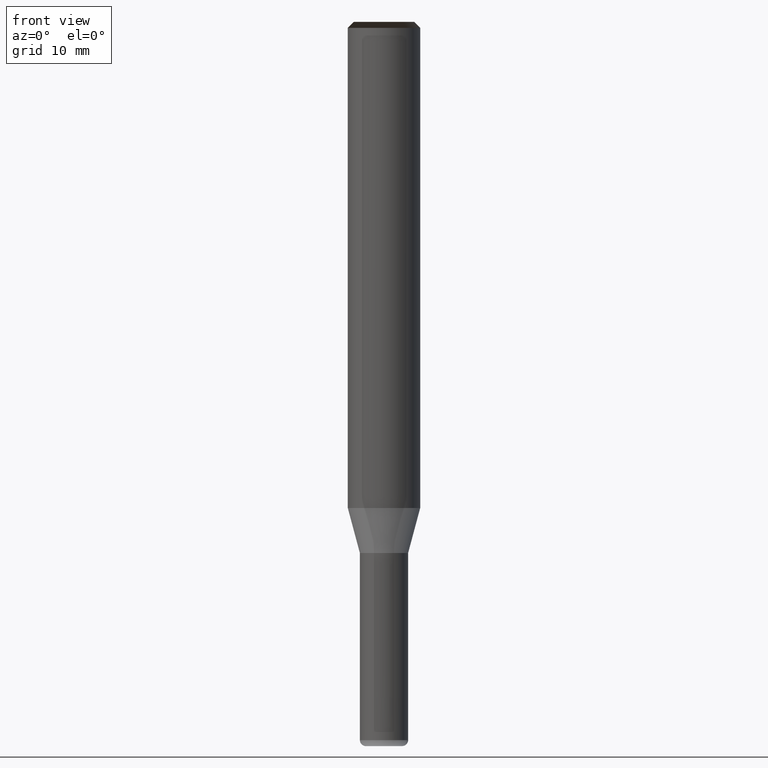
[diagram: clean part render]
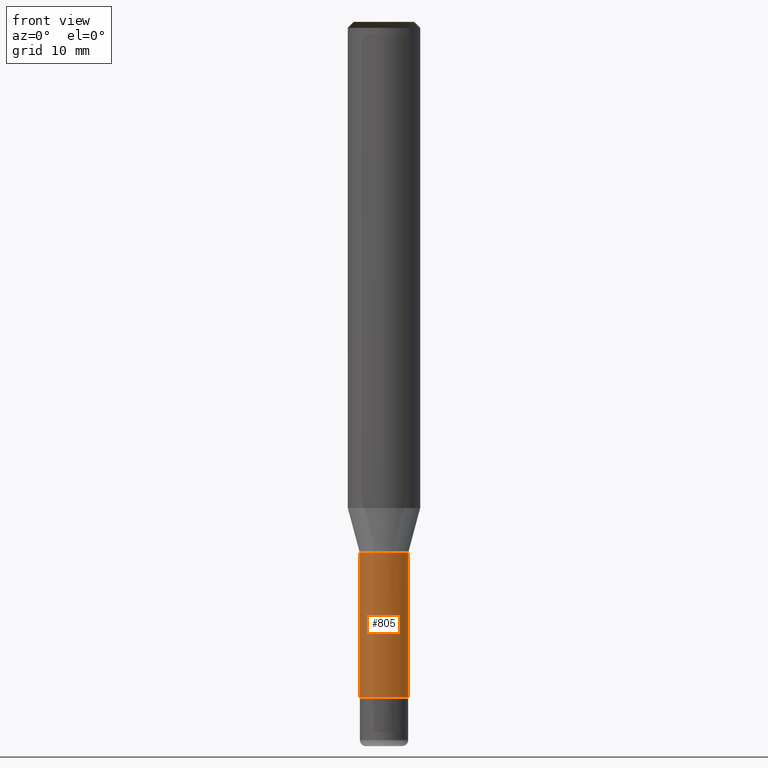
[diagram: same view with one face highlighted and labeled with its STEP entity id]
A machine part, front view. The second image highlights one B-rep face of the part: STEP entity #805.
In plain terms, the highlighted face is a freeform B-spline surface patch.
Its self-contained STEP definition (entity closure, byte-faithful):
#452=CARTESIAN_POINT('',(2.0,0.0,-15.732050807569));
#456=CARTESIAN_POINT('',(-2.0,0.0,-15.732050807569));
#467=CARTESIAN_POINT('',(-2.0,-2.0,-15.732050807569));
#468=CARTESIAN_POINT('',(0.0,-2.0,-15.732050807569));
#469=CARTESIAN_POINT('',(2.0,-2.0,-15.732050807569));
#470=CARTESIAN_POINT('',(2.0,0.0,-3.732050807569));
#474=CARTESIAN_POINT('',(-2.0,0.0,-3.732050807569));
#491=CARTESIAN_POINT('',(-2.0,-2.0,-3.732050807569));
#492=CARTESIAN_POINT('',(0.0,-2.0,-3.732050807569));
#493=CARTESIAN_POINT('',(2.0,-2.0,-3.732050807569));
#786=(
BOUNDED_SURFACE()
B_SPLINE_SURFACE(1,2,(
(#456,#467,#468,#469,#452),
(#474,#491,#492,#493,#470)
), .UNSPECIFIED.,.F.,.F.,.F.)
B_SPLINE_SURFACE_WITH_KNOTS((2,2),(3,2,3),(
0.0,1.0),(
0.0,0.5,1.0), .UNSPECIFIED.)
GEOMETRIC_REPRESENTATION_ITEM()
RATIONAL_B_SPLINE_SURFACE(((1.0,0.707106781187,1.0,0.707106781187,1.0),
(1.0,0.707106781187,1.0,0.707106781187,1.0)
))
REPRESENTATION_ITEM('')
SURFACE()
);
#787=(
BOUNDED_CURVE()
B_SPLINE_CURVE(1,(#474,#456),.UNSPECIFIED.,.F.,.F.)
B_SPLINE_CURVE_WITH_KNOTS((2,2),
(0.0,1.0),.UNSPECIFIED.)
CURVE()
GEOMETRIC_REPRESENTATION_ITEM()
RATIONAL_B_SPLINE_CURVE((1.0,1.0))
REPRESENTATION_ITEM('')
);
#788=(
BOUNDED_CURVE()
B_SPLINE_CURVE(2,(#456,#467,#468,#469,#452),.UNSPECIFIED.,.F.,.F.)
B_SPLINE_CURVE_WITH_KNOTS((3,2,3),
(0.0,0.5,1.0),.UNSPECIFIED.)
CURVE()
GEOMETRIC_REPRESENTATION_ITEM()
RATIONAL_B_SPLINE_CURVE((1.0,0.707106781187,1.0,0.707106781187,1.0))
REPRESENTATION_ITEM('')
);
#789=(
BOUNDED_CURVE()
B_SPLINE_CURVE(1,(#452,#470),.UNSPECIFIED.,.F.,.F.)
B_SPLINE_CURVE_WITH_KNOTS((2,2),
(0.0,1.0),.UNSPECIFIED.)
CURVE()
GEOMETRIC_REPRESENTATION_ITEM()
RATIONAL_B_SPLINE_CURVE((1.0,1.0))
REPRESENTATION_ITEM('')
);
#790=(
BOUNDED_CURVE()
B_SPLINE_CURVE(2,(#470,#493,#492,#491,#474),.UNSPECIFIED.,.F.,.F.)
B_SPLINE_CURVE_WITH_KNOTS((3,2,3),
(0.0,0.5,1.0),.UNSPECIFIED.)
CURVE()
GEOMETRIC_REPRESENTATION_ITEM()
RATIONAL_B_SPLINE_CURVE((1.0,0.707106781187,1.0,0.707106781187,1.0))
REPRESENTATION_ITEM('')
);
#791=VERTEX_POINT('',#452);
#792=VERTEX_POINT('',#456);
#793=VERTEX_POINT('',#470);
#794=VERTEX_POINT('',#474);
#795=EDGE_CURVE('',#794,#792,#787,.T.);
#796=EDGE_CURVE('',#792,#791,#788,.T.);
#797=EDGE_CURVE('',#791,#793,#789,.T.);
#798=EDGE_CURVE('',#793,#794,#790,.T.);
#799=ORIENTED_EDGE('',*,*,#795,.T.);
#800=ORIENTED_EDGE('',*,*,#796,.T.);
#801=ORIENTED_EDGE('',*,*,#797,.T.);
#802=ORIENTED_EDGE('',*,*,#798,.T.);
#803=EDGE_LOOP('',(#799,#800,#801,#802));
#804=FACE_OUTER_BOUND('',#803,.T.);
#805=ADVANCED_FACE('',(#804),#786,.T.);